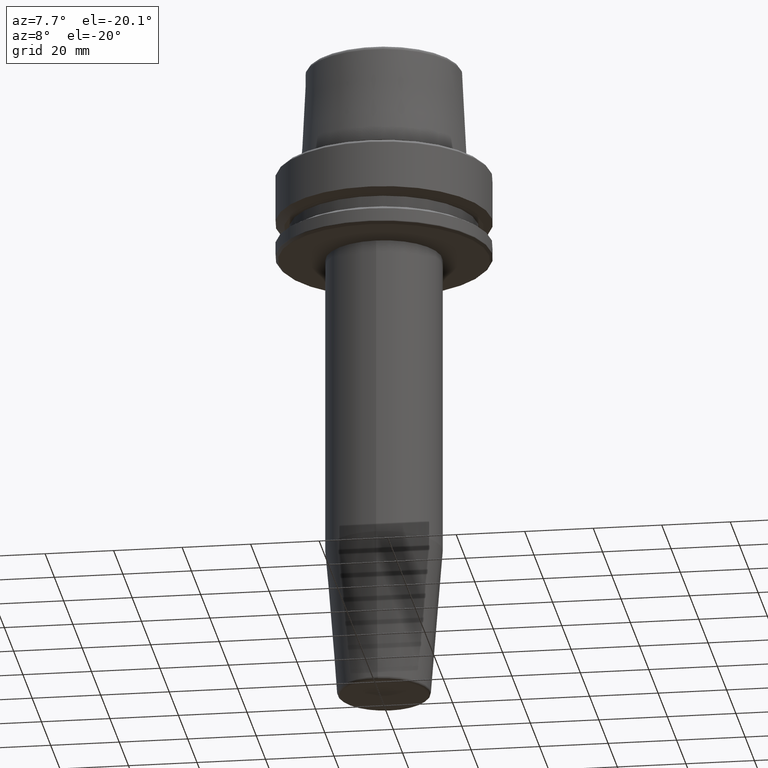
[diagram: clean part render]
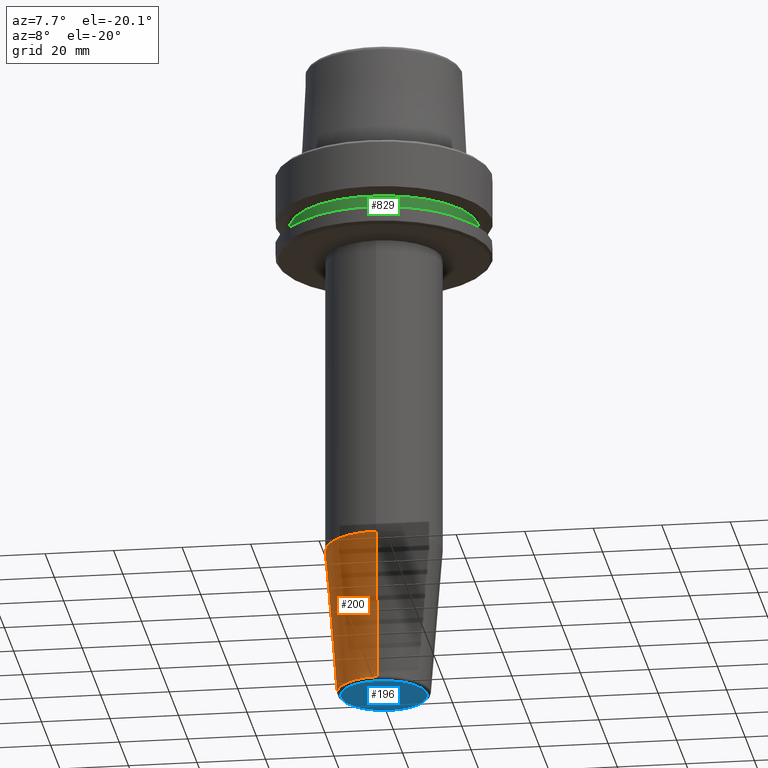
[diagram: same view with three faces highlighted in distinct colors, each labeled with its STEP entity id]
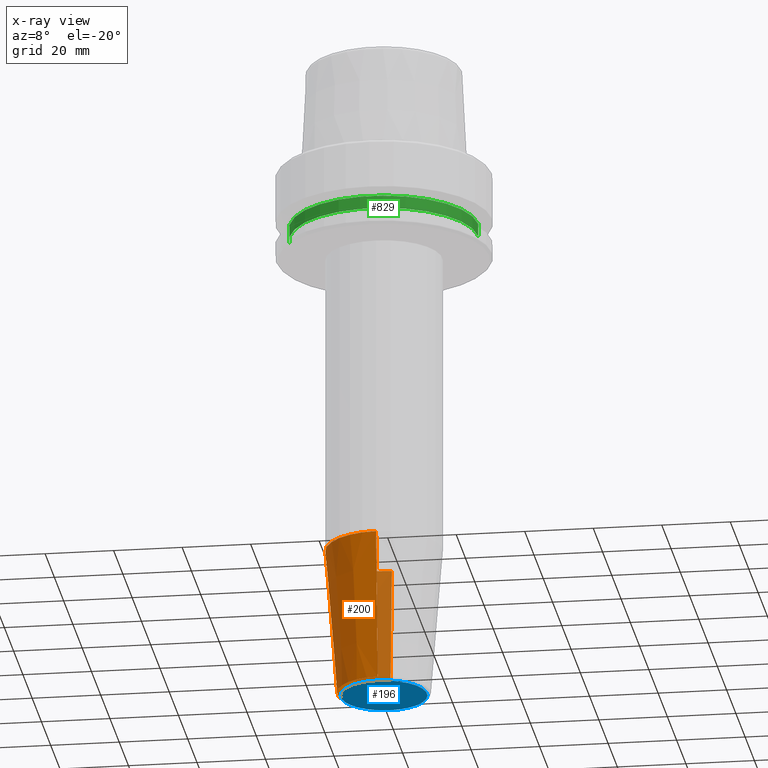
[diagram: x-ray of the same camera — body ghosted, the three highlighted faces saturated]
A machine part, auxiliary view with three faces highlighted in distinct colors.
The next image is the same camera in x-ray (body ghosted, the three faces saturated) — at least one of them is partly hidden behind the body in this view.
Their STEP definitions:

[orange] entity #200 — the highlighted conical surface has half-angle 4.5 deg.
#31 = DIRECTION ( 'NONE',  ( 0.0000000000000000000, -3.655662087007025400E-017, 1.000000000000000000 ) ) ;
#79 = DIRECTION ( 'NONE',  ( -0.0000000000000000000, 3.655662087007025400E-017, -1.000000000000000000 ) ) ;
#83 = CARTESIAN_POINT ( 'NONE',  ( 0.0000000000000000000, 3.272851514256864700E-015, -115.5282834233845500 ) ) ;
#97 = CARTESIAN_POINT ( 'NONE',  ( 0.0000000000000000000, 4.864898775135676200E-015, -159.0784590957278800 ) ) ;
#127 = FACE_OUTER_BOUND ( 'NONE', #1189, .T. ) ;
#200 = ADVANCED_FACE ( 'NONE', ( #127 ), #434, .T. ) ;
#219 = VERTEX_POINT ( 'NONE', #527 ) ;
#249 = CARTESIAN_POINT ( 'NONE',  ( 2.081899558550498300E-015, 16.99999999999998200, -115.5282834233845500 ) ) ;
#250 = VECTOR ( 'NONE', #1231, 999.9999999999998900 ) ;
#265 = VERTEX_POINT ( 'NONE', #997 ) ;
#330 = CARTESIAN_POINT ( 'NONE',  ( 0.0000000000000000000, -16.99999999999997900, -115.5282834233845500 ) ) ;
#343 = VERTEX_POINT ( 'NONE', #330 ) ;
#356 = CIRCLE ( 'NONE', #892, 16.99999999999997900 ) ;
#422 = AXIS2_PLACEMENT_3D ( 'NONE', #675, #31, #949 ) ;
#430 = EDGE_CURVE ( 'NONE', #1113, #265, #1142, .T. ) ;
#434 = CONICAL_SURFACE ( 'NONE', #422, 16.99999999999997900, 0.07853981633973741700 ) ;
#453 = ORIENTED_EDGE ( 'NONE', *, *, #662, .T. ) ;
#527 = CARTESIAN_POINT ( 'NONE',  ( 2.081899558550498300E-015, 16.99999999999998200, -115.5282834233845500 ) ) ;
#592 = AXIS2_PLACEMENT_3D ( 'NONE', #97, #1257, #1059 ) ;
#593 = ORIENTED_EDGE ( 'NONE', *, *, #1228, .F. ) ;
#639 = CARTESIAN_POINT ( 'NONE',  ( 0.0000000000000000000, -16.99999999999997900, -115.5282834233845500 ) ) ;
#653 = DIRECTION ( 'NONE',  ( 0.0000000000000000000, 1.000000000000000000, 0.0000000000000000000 ) ) ;
#654 = EDGE_CURVE ( 'NONE', #1113, #343, #1218, .T. ) ;
#662 = EDGE_CURVE ( 'NONE', #343, #219, #356, .T. ) ;
#675 = CARTESIAN_POINT ( 'NONE',  ( 0.0000000000000000000, 3.272851514256864700E-015, -115.5282834233845500 ) ) ;
#818 = ORIENTED_EDGE ( 'NONE', *, *, #430, .F. ) ;
#833 = DIRECTION ( 'NONE',  ( 9.608468044709201400E-018, 0.07845909572783750500, 0.9969173337331286300 ) ) ;
#851 = LINE ( 'NONE', #249, #1195 ) ;
#892 = AXIS2_PLACEMENT_3D ( 'NONE', #83, #79, #653 ) ;
#949 = DIRECTION ( 'NONE',  ( 0.0000000000000000000, -1.000000000000000000, 0.0000000000000000000 ) ) ;
#962 = ORIENTED_EDGE ( 'NONE', *, *, #654, .T. ) ;
#997 = CARTESIAN_POINT ( 'NONE',  ( 0.0000000000000000000, 13.57252684207491800, -159.0784590957278800 ) ) ;
#1026 = CARTESIAN_POINT ( 'NONE',  ( 1.662155155348857600E-015, -13.57252684207490700, -159.0784590957278800 ) ) ;
#1059 = DIRECTION ( 'NONE',  ( 0.0000000000000000000, 1.000000000000000000, 0.0000000000000000000 ) ) ;
#1113 = VERTEX_POINT ( 'NONE', #1026 ) ;
#1142 = CIRCLE ( 'NONE', #592, 13.57252684207491100 ) ;
#1189 = EDGE_LOOP ( 'NONE', ( #593, #818, #962, #453 ) ) ;
#1195 = VECTOR ( 'NONE', #833, 999.9999999999998900 ) ;
#1218 = LINE ( 'NONE', #639, #250 ) ;
#1228 = EDGE_CURVE ( 'NONE', #265, #219, #851, .T. ) ;
#1231 = DIRECTION ( 'NONE',  ( 0.0000000000000000000, -0.07845909572783758800, 0.9969173337331286300 ) ) ;
#1257 = DIRECTION ( 'NONE',  ( -0.0000000000000000000, 3.655662087007025400E-017, -1.000000000000000000 ) ) ;

[blue] entity #196 — the highlighted planar face has unit normal (0, -0, 1).
#40 = EDGE_LOOP ( 'NONE', ( #866, #816 ) ) ;
#177 = DIRECTION ( 'NONE',  ( 0.0000000000000000000, 1.000000000000000000, 0.0000000000000000000 ) ) ;
#196 = ADVANCED_FACE ( 'NONE', ( #1127 ), #827, .F. ) ;
#197 = CARTESIAN_POINT ( 'NONE',  ( 0.0000000000000000000, 12.57560950834179400, -160.0000000000000000 ) ) ;
#206 = VERTEX_POINT ( 'NONE', #619 ) ;
#284 = CARTESIAN_POINT ( 'NONE',  ( 0.0000000000000000000, 8.402937573210559100E-033, -160.0000000000000000 ) ) ;
#442 = VERTEX_POINT ( 'NONE', #197 ) ;
#493 = AXIS2_PLACEMENT_3D ( 'NONE', #284, #770, #1140 ) ;
#619 = CARTESIAN_POINT ( 'NONE',  ( 1.601111574260318500E-015, -12.57560950834178300, -160.0000000000000000 ) ) ;
#637 = DIRECTION ( 'NONE',  ( 0.0000000000000000000, 1.000000000000000000, 0.0000000000000000000 ) ) ;
#643 = CIRCLE ( 'NONE', #1004, 12.57560950834178800 ) ;
#737 = DIRECTION ( 'NONE',  ( -0.0000000000000000000, 3.655662087007025400E-017, -1.000000000000000000 ) ) ;
#769 = CARTESIAN_POINT ( 'NONE',  ( 0.0000000000000000000, 4.898587196589414600E-015, -160.0000000000000000 ) ) ;
#770 = DIRECTION ( 'NONE',  ( 0.0000000000000000000, -3.655662087007025400E-017, 1.000000000000000000 ) ) ;
#816 = ORIENTED_EDGE ( 'NONE', *, *, #972, .T. ) ;
#827 = PLANE ( 'NONE',  #493 ) ;
#866 = ORIENTED_EDGE ( 'NONE', *, *, #1199, .T. ) ;
#972 = EDGE_CURVE ( 'NONE', #206, #442, #1152, .T. ) ;
#1004 = AXIS2_PLACEMENT_3D ( 'NONE', #1111, #737, #637 ) ;
#1015 = AXIS2_PLACEMENT_3D ( 'NONE', #769, #1050, #177 ) ;
#1050 = DIRECTION ( 'NONE',  ( -0.0000000000000000000, 3.655662087007025400E-017, -1.000000000000000000 ) ) ;
#1111 = CARTESIAN_POINT ( 'NONE',  ( 0.0000000000000000000, 4.898587196589414600E-015, -160.0000000000000000 ) ) ;
#1127 = FACE_OUTER_BOUND ( 'NONE', #40, .T. ) ;
#1140 = DIRECTION ( 'NONE',  ( 0.0000000000000000000, -1.000000000000000000, -3.655662087007025400E-017 ) ) ;
#1152 = CIRCLE ( 'NONE', #1015, 12.57560950834178800 ) ;
#1199 = EDGE_CURVE ( 'NONE', #442, #206, #643, .T. ) ;

[green] entity #829 — the highlighted cylindrical surface (partial cylindrical patch) has radius 27.5 mm, axis along (-0, -0, 1).
#61 = EDGE_CURVE ( 'NONE', #986, #720, #1075, .T. ) ;
#101 = ORIENTED_EDGE ( 'NONE', *, *, #930, .F. ) ;
#105 = LINE ( 'NONE', #894, #880 ) ;
#119 = CARTESIAN_POINT ( 'NONE',  ( -27.49999999999999600, 3.367778697655220900E-015, -19.90000000000001600 ) ) ;
#188 = CARTESIAN_POINT ( 'NONE',  ( 0.0000000000000000000, 0.0000000000000000000, 78.96908074195309300 ) ) ;
#290 = EDGE_CURVE ( 'NONE', #986, #981, #951, .T. ) ;
#319 = CARTESIAN_POINT ( 'NONE',  ( 27.49999999999999600, 0.0000000000000000000, -16.10000000000001600 ) ) ;
#321 = CYLINDRICAL_SURFACE ( 'NONE', #435, 27.49999999999999600 ) ;
#375 = DIRECTION ( 'NONE',  ( -0.0000000000000000000, -0.0000000000000000000, 1.000000000000000000 ) ) ;
#377 = ORIENTED_EDGE ( 'NONE', *, *, #61, .T. ) ;
#435 = AXIS2_PLACEMENT_3D ( 'NONE', #188, #449, #1037 ) ;
#449 = DIRECTION ( 'NONE',  ( -0.0000000000000000000, -0.0000000000000000000, 1.000000000000000000 ) ) ;
#470 = FACE_OUTER_BOUND ( 'NONE', #1039, .T. ) ;
#512 = DIRECTION ( 'NONE',  ( 1.000000000000000000, 0.0000000000000000000, 0.0000000000000000000 ) ) ;
#541 = DIRECTION ( 'NONE',  ( 1.000000000000000000, 0.0000000000000000000, 0.0000000000000000000 ) ) ;
#586 = VECTOR ( 'NONE', #905, 1000.000000000000000 ) ;
#599 = DIRECTION ( 'NONE',  ( -0.0000000000000000000, -0.0000000000000000000, 1.000000000000000000 ) ) ;
#627 = CARTESIAN_POINT ( 'NONE',  ( 0.0000000000000000000, 0.0000000000000000000, -19.90000000000001600 ) ) ;
#720 = VERTEX_POINT ( 'NONE', #847 ) ;
#782 = CARTESIAN_POINT ( 'NONE',  ( -27.49999999999999600, 3.367778697655220900E-015, 78.96908074195309300 ) ) ;
#806 = CARTESIAN_POINT ( 'NONE',  ( -27.49999999999999600, 3.367778697655220900E-015, -16.10000000000001600 ) ) ;
#808 = VERTEX_POINT ( 'NONE', #319 ) ;
#829 = ADVANCED_FACE ( 'NONE', ( #470 ), #321, .T. ) ;
#830 = AXIS2_PLACEMENT_3D ( 'NONE', #989, #599, #512 ) ;
#847 = CARTESIAN_POINT ( 'NONE',  ( 27.49999999999999600, 0.0000000000000000000, -19.90000000000001600 ) ) ;
#880 = VECTOR ( 'NONE', #1185, 1000.000000000000000 ) ;
#894 = CARTESIAN_POINT ( 'NONE',  ( 27.49999999999999600, 0.0000000000000000000, 78.96908074195309300 ) ) ;
#905 = DIRECTION ( 'NONE',  ( -0.0000000000000000000, -0.0000000000000000000, 1.000000000000000000 ) ) ;
#930 = EDGE_CURVE ( 'NONE', #981, #808, #1052, .T. ) ;
#951 = LINE ( 'NONE', #782, #586 ) ;
#971 = EDGE_CURVE ( 'NONE', #720, #808, #105, .T. ) ;
#981 = VERTEX_POINT ( 'NONE', #806 ) ;
#986 = VERTEX_POINT ( 'NONE', #119 ) ;
#987 = ORIENTED_EDGE ( 'NONE', *, *, #290, .F. ) ;
#989 = CARTESIAN_POINT ( 'NONE',  ( 0.0000000000000000000, 0.0000000000000000000, -16.10000000000001600 ) ) ;
#1037 = DIRECTION ( 'NONE',  ( 1.000000000000000000, 0.0000000000000000000, 0.0000000000000000000 ) ) ;
#1039 = EDGE_LOOP ( 'NONE', ( #987, #377, #1239, #101 ) ) ;
#1052 = CIRCLE ( 'NONE', #830, 27.49999999999999600 ) ;
#1075 = CIRCLE ( 'NONE', #1137, 27.49999999999999600 ) ;
#1137 = AXIS2_PLACEMENT_3D ( 'NONE', #627, #375, #541 ) ;
#1185 = DIRECTION ( 'NONE',  ( -0.0000000000000000000, -0.0000000000000000000, 1.000000000000000000 ) ) ;
#1239 = ORIENTED_EDGE ( 'NONE', *, *, #971, .T. ) ;